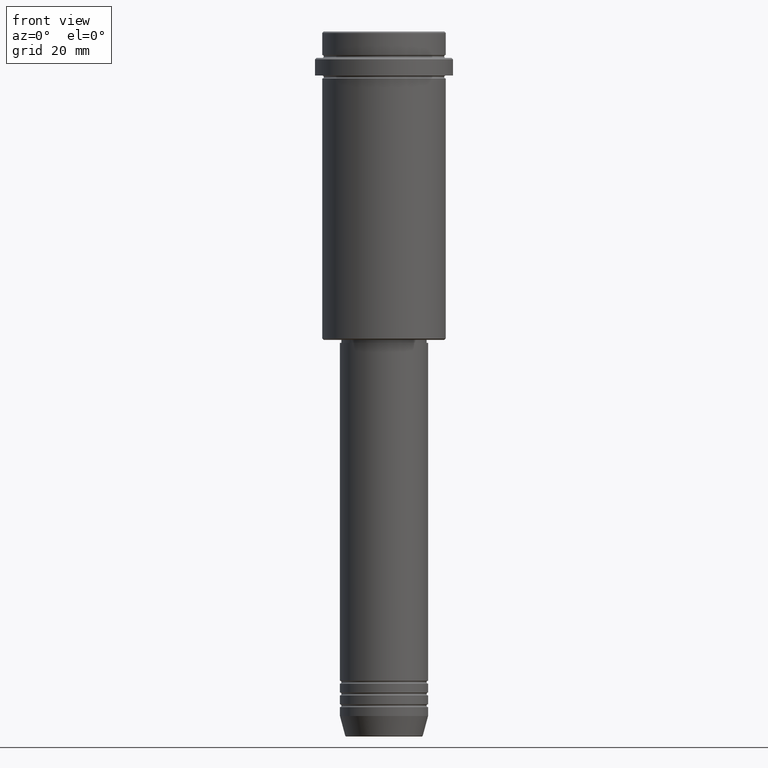
[diagram: clean part render]
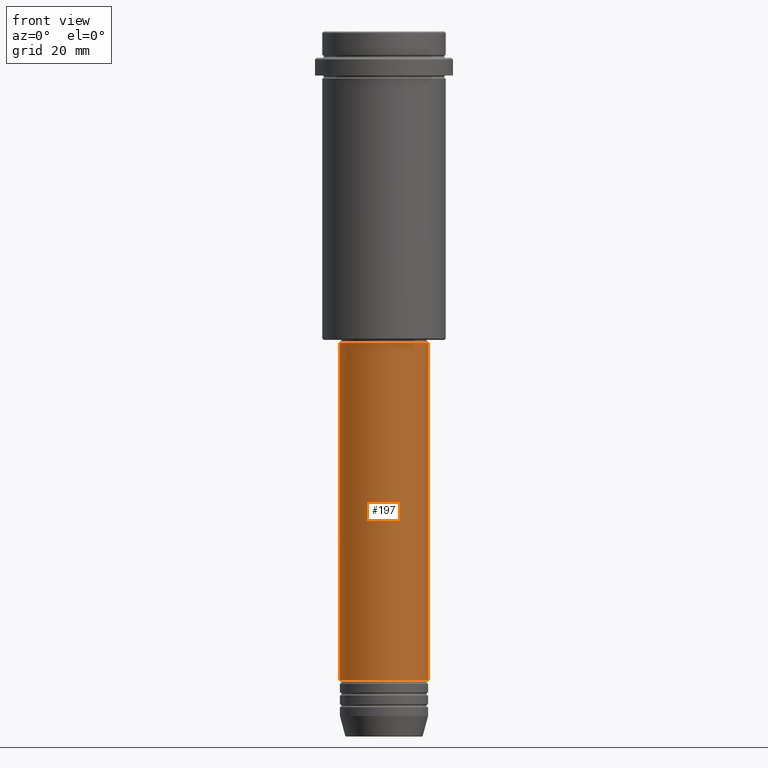
[diagram: same view with one face highlighted and labeled with its STEP entity id]
A machine part, front view. The second image highlights one B-rep face of the part: STEP entity #197.
In plain terms, the highlighted cylindrical surface (partial cylindrical patch) has radius 15 mm, axis along (-0, -0, 1).
Its self-contained STEP definition (entity closure, byte-faithful):
#19 = FACE_OUTER_BOUND ( 'NONE', #196, .T. ) ;
#97 = AXIS2_PLACEMENT_3D ( 'NONE', #903, #893, #779 ) ;
#111 = VERTEX_POINT ( 'NONE', #640 ) ;
#136 = DIRECTION ( 'NONE',  ( 1.000000000000000000, 0.000000000000000000, 0.000000000000000000 ) ) ;
#151 = CARTESIAN_POINT ( 'NONE',  ( 0.000000000000000000, 0.000000000000000000, -106.0000000000000142 ) ) ;
#170 = CIRCLE ( 'NONE', #946, 15.00000000000000000 ) ;
#196 = EDGE_LOOP ( 'NONE', ( #443, #1278, #1163, #1412 ) ) ;
#197 = ADVANCED_FACE ( 'NONE', ( #19 ), #452, .T. ) ;
#246 = CARTESIAN_POINT ( 'NONE',  ( 15.00000000000000000, 0.000000000000000000, 0.000000000000000000 ) ) ;
#289 = LINE ( 'NONE', #718, #680 ) ;
#367 = AXIS2_PLACEMENT_3D ( 'NONE', #912, #1347, #136 ) ;
#383 = VERTEX_POINT ( 'NONE', #950 ) ;
#443 = ORIENTED_EDGE ( 'NONE', *, *, #855, .F. ) ;
#452 = CYLINDRICAL_SURFACE ( 'NONE', #97, 15.00000000000000000 ) ;
#453 = CARTESIAN_POINT ( 'NONE',  ( -15.00000000000000000, 1.836970198721029589E-15, -106.0000000000000142 ) ) ;
#615 = CIRCLE ( 'NONE', #367, 15.00000000000000000 ) ;
#640 = CARTESIAN_POINT ( 'NONE',  ( 15.00000000000000000, 0.000000000000000000, -220.9999999999999432 ) ) ;
#663 = VECTOR ( 'NONE', #1335, 1000.000000000000000 ) ;
#677 = EDGE_CURVE ( 'NONE', #111, #383, #806, .T. ) ;
#680 = VECTOR ( 'NONE', #1070, 1000.000000000000000 ) ;
#718 = CARTESIAN_POINT ( 'NONE',  ( -15.00000000000000000, 1.836970198721029589E-15, 0.000000000000000000 ) ) ;
#779 = DIRECTION ( 'NONE',  ( 1.000000000000000000, 0.000000000000000000, 0.000000000000000000 ) ) ;
#806 = LINE ( 'NONE', #246, #663 ) ;
#855 = EDGE_CURVE ( 'NONE', #1310, #1186, #289, .T. ) ;
#893 = DIRECTION ( 'NONE',  ( -0.000000000000000000, -0.000000000000000000, 1.000000000000000000 ) ) ;
#903 = CARTESIAN_POINT ( 'NONE',  ( 0.000000000000000000, 0.000000000000000000, 0.000000000000000000 ) ) ;
#912 = CARTESIAN_POINT ( 'NONE',  ( 0.000000000000000000, 0.000000000000000000, -220.9999999999999432 ) ) ;
#946 = AXIS2_PLACEMENT_3D ( 'NONE', #151, #1019, #1256 ) ;
#950 = CARTESIAN_POINT ( 'NONE',  ( 15.00000000000000000, 0.000000000000000000, -106.0000000000000142 ) ) ;
#1019 = DIRECTION ( 'NONE',  ( -0.000000000000000000, -0.000000000000000000, 1.000000000000000000 ) ) ;
#1034 = CARTESIAN_POINT ( 'NONE',  ( -15.00000000000000000, 1.836970198721029589E-15, -220.9999999999999432 ) ) ;
#1060 = EDGE_CURVE ( 'NONE', #1310, #111, #615, .T. ) ;
#1070 = DIRECTION ( 'NONE',  ( -0.000000000000000000, -0.000000000000000000, 1.000000000000000000 ) ) ;
#1163 = ORIENTED_EDGE ( 'NONE', *, *, #677, .T. ) ;
#1186 = VERTEX_POINT ( 'NONE', #453 ) ;
#1256 = DIRECTION ( 'NONE',  ( 1.000000000000000000, 0.000000000000000000, 0.000000000000000000 ) ) ;
#1278 = ORIENTED_EDGE ( 'NONE', *, *, #1060, .T. ) ;
#1310 = VERTEX_POINT ( 'NONE', #1034 ) ;
#1335 = DIRECTION ( 'NONE',  ( -0.000000000000000000, -0.000000000000000000, 1.000000000000000000 ) ) ;
#1347 = DIRECTION ( 'NONE',  ( -0.000000000000000000, -0.000000000000000000, 1.000000000000000000 ) ) ;
#1359 = EDGE_CURVE ( 'NONE', #1186, #383, #170, .T. ) ;
#1412 = ORIENTED_EDGE ( 'NONE', *, *, #1359, .F. ) ;